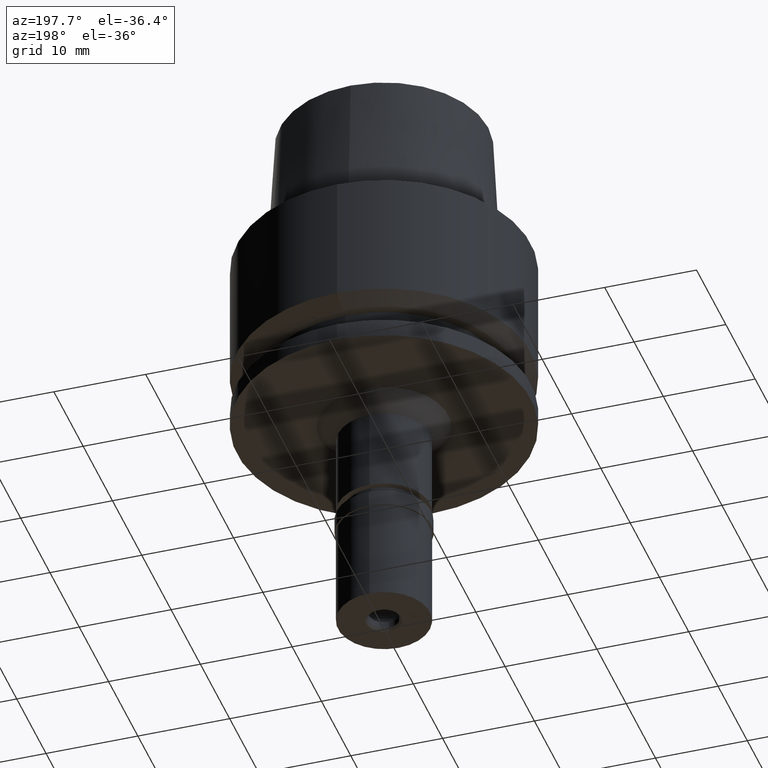
[diagram: clean part render]
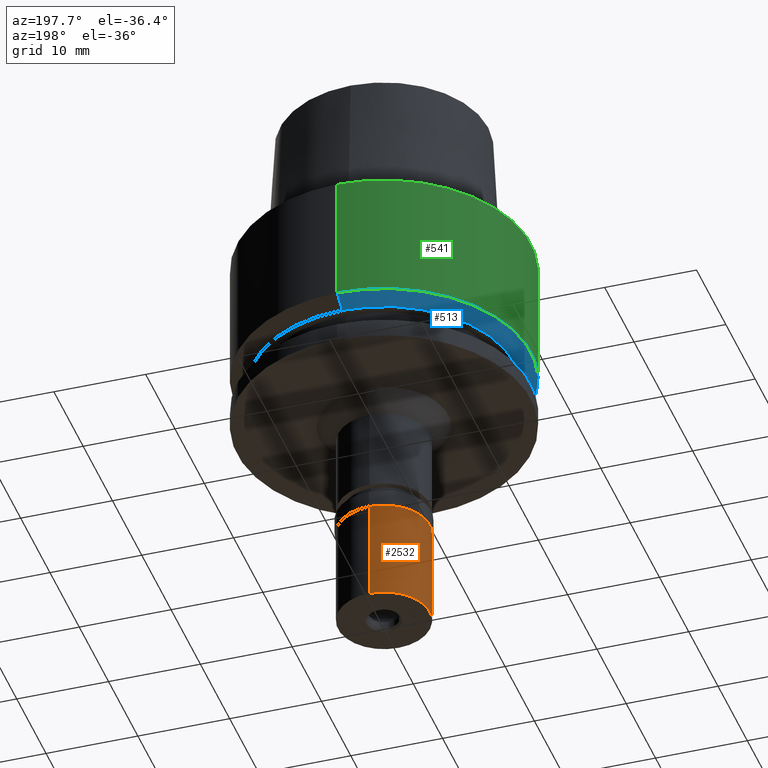
[diagram: same view with three faces highlighted in distinct colors, each labeled with its STEP entity id]
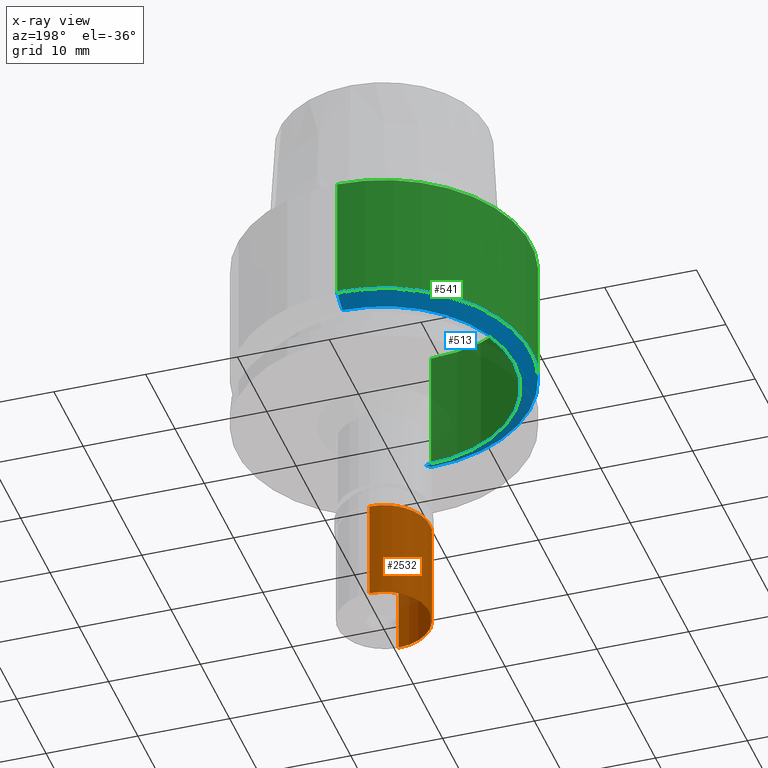
[diagram: x-ray of the same camera — body ghosted, the three highlighted faces saturated]
A machine part, auxiliary view with three faces highlighted in distinct colors.
The next image is the same camera in x-ray (body ghosted, the three faces saturated) — at least one of them is partly hidden behind the body in this view.
Their STEP definitions:

[orange] entity #2532 — the highlighted cylindrical surface (partial cylindrical patch) has radius 5 mm, axis along (0, 0, 1).
#1 = DIRECTION ( 'NONE',  ( 0.0000000000000000000, 0.0000000000000000000, -1.000000000000000000 ) ) ;
#69 = ORIENTED_EDGE ( 'NONE', *, *, #971, .T. ) ;
#91 = AXIS2_PLACEMENT_3D ( 'NONE', #2477, #1029, #2678 ) ;
#119 = FACE_OUTER_BOUND ( 'NONE', #1963, .T. ) ;
#392 = CARTESIAN_POINT ( 'NONE',  ( 0.0000000000000000000, -5.000000000000000000, -1.800000000000000044 ) ) ;
#414 = DIRECTION ( 'NONE',  ( 0.0000000000000000000, 0.0000000000000000000, -1.000000000000000000 ) ) ;
#480 = ORIENTED_EDGE ( 'NONE', *, *, #719, .T. ) ;
#504 = AXIS2_PLACEMENT_3D ( 'NONE', #1792, #705, #673 ) ;
#653 = VECTOR ( 'NONE', #1, 1000.000000000000000 ) ;
#673 = DIRECTION ( 'NONE',  ( 0.0000000000000000000, 1.000000000000000000, 0.0000000000000000000 ) ) ;
#681 = VERTEX_POINT ( 'NONE', #2067 ) ;
#683 = EDGE_CURVE ( 'NONE', #681, #1493, #1047, .T. ) ;
#692 = EDGE_CURVE ( 'NONE', #681, #2529, #1270, .T. ) ;
#705 = DIRECTION ( 'NONE',  ( 0.0000000000000000000, 0.0000000000000000000, 1.000000000000000000 ) ) ;
#719 = EDGE_CURVE ( 'NONE', #1493, #2041, #1879, .T. ) ;
#956 = CYLINDRICAL_SURFACE ( 'NONE', #504, 5.000000000000000000 ) ;
#971 = EDGE_CURVE ( 'NONE', #2041, #2529, #2619, .T. ) ;
#982 = ORIENTED_EDGE ( 'NONE', *, *, #683, .T. ) ;
#1029 = DIRECTION ( 'NONE',  ( 0.0000000000000000000, 0.0000000000000000000, -1.000000000000000000 ) ) ;
#1047 = CIRCLE ( 'NONE', #91, 5.000000000000000000 ) ;
#1270 = LINE ( 'NONE', #392, #2096 ) ;
#1493 = VERTEX_POINT ( 'NONE', #1814 ) ;
#1655 = CARTESIAN_POINT ( 'NONE',  ( 0.0000000000000000000, 5.000000000000000000, -1.800000000000000044 ) ) ;
#1663 = DIRECTION ( 'NONE',  ( 0.0000000000000000000, 0.0000000000000000000, 1.000000000000000000 ) ) ;
#1792 = CARTESIAN_POINT ( 'NONE',  ( 0.0000000000000000000, 0.0000000000000000000, -13.65000000000000036 ) ) ;
#1814 = CARTESIAN_POINT ( 'NONE',  ( 0.0000000000000000000, 5.000000000000000000, -1.800000000000000044 ) ) ;
#1877 = CARTESIAN_POINT ( 'NONE',  ( 0.0000000000000000000, 0.0000000000000000000, -13.00000000000000000 ) ) ;
#1879 = LINE ( 'NONE', #1655, #653 ) ;
#1963 = EDGE_LOOP ( 'NONE', ( #69, #1991, #982, #480 ) ) ;
#1991 = ORIENTED_EDGE ( 'NONE', *, *, #692, .F. ) ;
#2041 = VERTEX_POINT ( 'NONE', #2221 ) ;
#2067 = CARTESIAN_POINT ( 'NONE',  ( 0.0000000000000000000, -5.000000000000000000, -1.800000000000000044 ) ) ;
#2096 = VECTOR ( 'NONE', #414, 1000.000000000000000 ) ;
#2139 = AXIS2_PLACEMENT_3D ( 'NONE', #1877, #1663, #2654 ) ;
#2221 = CARTESIAN_POINT ( 'NONE',  ( 0.0000000000000000000, 5.000000000000000000, -13.00000000000000000 ) ) ;
#2477 = CARTESIAN_POINT ( 'NONE',  ( 0.0000000000000000000, 0.0000000000000000000, -1.800000000000000044 ) ) ;
#2529 = VERTEX_POINT ( 'NONE', #2589 ) ;
#2532 = ADVANCED_FACE ( 'NONE', ( #119 ), #956, .T. ) ;
#2589 = CARTESIAN_POINT ( 'NONE',  ( 0.0000000000000000000, -5.000000000000000000, -13.00000000000000000 ) ) ;
#2619 = CIRCLE ( 'NONE', #2139, 5.000000000000000000 ) ;
#2654 = DIRECTION ( 'NONE',  ( 0.0000000000000000000, 1.000000000000000000, 0.0000000000000000000 ) ) ;
#2678 = DIRECTION ( 'NONE',  ( 0.0000000000000000000, -1.000000000000000000, 0.0000000000000000000 ) ) ;

[blue] entity #513 — the highlighted conical surface has half-angle 60 deg.
#147 = DIRECTION ( 'NONE',  ( 0.0000000000000000000, 0.0000000000000000000, 1.000000000000000000 ) ) ;
#169 = FACE_OUTER_BOUND ( 'NONE', #2501, .T. ) ;
#243 = AXIS2_PLACEMENT_3D ( 'NONE', #775, #147, #1817 ) ;
#278 = LINE ( 'NONE', #1106, #2148 ) ;
#296 = AXIS2_PLACEMENT_3D ( 'NONE', #2652, #746, #1570 ) ;
#351 = EDGE_CURVE ( 'NONE', #2224, #2081, #1653, .T. ) ;
#360 = VECTOR ( 'NONE', #2159, 1000.000000000000000 ) ;
#361 = CARTESIAN_POINT ( 'NONE',  ( 0.0000000000000000000, 0.0000000000000000000, -14.48963702891999894 ) ) ;
#373 = CIRCLE ( 'NONE', #243, 14.23205080756999941 ) ;
#482 = CARTESIAN_POINT ( 'NONE',  ( 0.0000000000000000000, 14.23205080756999941, -15.00000000000000000 ) ) ;
#513 = ADVANCED_FACE ( 'NONE', ( #169 ), #909, .T. ) ;
#557 = DIRECTION ( 'NONE',  ( 0.0000000000000000000, 0.0000000000000000000, 1.000000000000000000 ) ) ;
#746 = DIRECTION ( 'NONE',  ( 0.0000000000000000000, 0.0000000000000000000, 1.000000000000000000 ) ) ;
#775 = CARTESIAN_POINT ( 'NONE',  ( 0.0000000000000000000, 0.0000000000000000000, -15.00000000000000000 ) ) ;
#909 = CONICAL_SURFACE ( 'NONE', #2565, 15.11602540378000015, 1.047197551196400456 ) ;
#923 = ORIENTED_EDGE ( 'NONE', *, *, #2647, .T. ) ;
#957 = CARTESIAN_POINT ( 'NONE',  ( 0.0000000000000000000, -16.00000000000000000, -13.97927405783999966 ) ) ;
#966 = CARTESIAN_POINT ( 'NONE',  ( 0.0000000000000000000, -14.23205080756999941, -15.00000000000000000 ) ) ;
#1106 = CARTESIAN_POINT ( 'NONE',  ( 0.0000000000000000000, -16.00000000000000000, -13.97927405783999966 ) ) ;
#1259 = CARTESIAN_POINT ( 'NONE',  ( 0.0000000000000000000, 16.00000000000000000, -13.97927405783999966 ) ) ;
#1331 = LINE ( 'NONE', #2609, #360 ) ;
#1358 = DIRECTION ( 'NONE',  ( 0.0000000000000000000, 0.8660254037847886499, -0.4999999999993937627 ) ) ;
#1450 = ORIENTED_EDGE ( 'NONE', *, *, #1920, .F. ) ;
#1476 = ORIENTED_EDGE ( 'NONE', *, *, #351, .F. ) ;
#1484 = ORIENTED_EDGE ( 'NONE', *, *, #1832, .T. ) ;
#1570 = DIRECTION ( 'NONE',  ( 0.0000000000000000000, 1.000000000000000000, 0.0000000000000000000 ) ) ;
#1653 = CIRCLE ( 'NONE', #296, 16.00000000000000000 ) ;
#1817 = DIRECTION ( 'NONE',  ( 0.0000000000000000000, 1.000000000000000000, 0.0000000000000000000 ) ) ;
#1832 = EDGE_CURVE ( 'NONE', #2224, #2537, #1331, .T. ) ;
#1920 = EDGE_CURVE ( 'NONE', #2081, #2627, #278, .T. ) ;
#2081 = VERTEX_POINT ( 'NONE', #957 ) ;
#2148 = VECTOR ( 'NONE', #1358, 1000.000000000000000 ) ;
#2159 = DIRECTION ( 'NONE',  ( 0.0000000000000000000, -0.8660254037847886499, -0.4999999999993937627 ) ) ;
#2224 = VERTEX_POINT ( 'NONE', #1259 ) ;
#2392 = DIRECTION ( 'NONE',  ( 0.0000000000000000000, 1.000000000000000000, 0.0000000000000000000 ) ) ;
#2501 = EDGE_LOOP ( 'NONE', ( #923, #1450, #1476, #1484 ) ) ;
#2537 = VERTEX_POINT ( 'NONE', #482 ) ;
#2565 = AXIS2_PLACEMENT_3D ( 'NONE', #361, #557, #2392 ) ;
#2609 = CARTESIAN_POINT ( 'NONE',  ( 0.0000000000000000000, 16.00000000000000000, -13.97927405783999966 ) ) ;
#2627 = VERTEX_POINT ( 'NONE', #966 ) ;
#2647 = EDGE_CURVE ( 'NONE', #2537, #2627, #373, .T. ) ;
#2652 = CARTESIAN_POINT ( 'NONE',  ( 0.0000000000000000000, 0.0000000000000000000, -13.97927405783999966 ) ) ;

[green] entity #541 — the highlighted cylindrical surface (partial cylindrical patch) has radius 16 mm, axis along (0, 0, 1).
#32 = EDGE_CURVE ( 'NONE', #336, #2081, #2254, .T. ) ;
#55 = ORIENTED_EDGE ( 'NONE', *, *, #351, .T. ) ;
#131 = CARTESIAN_POINT ( 'NONE',  ( 0.0000000000000000000, -16.00000000000000000, -2.842170943039999687E-14 ) ) ;
#184 = DIRECTION ( 'NONE',  ( 0.0000000000000000000, 1.000000000000000000, 0.0000000000000000000 ) ) ;
#296 = AXIS2_PLACEMENT_3D ( 'NONE', #2652, #746, #1570 ) ;
#336 = VERTEX_POINT ( 'NONE', #131 ) ;
#351 = EDGE_CURVE ( 'NONE', #2224, #2081, #1653, .T. ) ;
#470 = AXIS2_PLACEMENT_3D ( 'NONE', #2051, #1443, #184 ) ;
#473 = EDGE_LOOP ( 'NONE', ( #55, #1122, #2073, #1360 ) ) ;
#541 = ADVANCED_FACE ( 'NONE', ( #2473 ), #1225, .T. ) ;
#746 = DIRECTION ( 'NONE',  ( 0.0000000000000000000, 0.0000000000000000000, 1.000000000000000000 ) ) ;
#957 = CARTESIAN_POINT ( 'NONE',  ( 0.0000000000000000000, -16.00000000000000000, -13.97927405783999966 ) ) ;
#1119 = EDGE_CURVE ( 'NONE', #1262, #2224, #1719, .T. ) ;
#1122 = ORIENTED_EDGE ( 'NONE', *, *, #32, .F. ) ;
#1125 = DIRECTION ( 'NONE',  ( 0.0000000000000000000, -1.000000000000000000, 0.0000000000000000000 ) ) ;
#1149 = AXIS2_PLACEMENT_3D ( 'NONE', #1372, #2358, #1125 ) ;
#1194 = CIRCLE ( 'NONE', #1149, 16.00000000000000000 ) ;
#1225 = CYLINDRICAL_SURFACE ( 'NONE', #470, 16.00000000000000000 ) ;
#1259 = CARTESIAN_POINT ( 'NONE',  ( 0.0000000000000000000, 16.00000000000000000, -13.97927405783999966 ) ) ;
#1262 = VERTEX_POINT ( 'NONE', #1581 ) ;
#1265 = VECTOR ( 'NONE', #1416, 1000.000000000000000 ) ;
#1360 = ORIENTED_EDGE ( 'NONE', *, *, #1119, .T. ) ;
#1372 = CARTESIAN_POINT ( 'NONE',  ( 0.0000000000000000000, 0.0000000000000000000, -2.842170943039999687E-14 ) ) ;
#1402 = CARTESIAN_POINT ( 'NONE',  ( 0.0000000000000000000, -16.00000000000000000, -1.894780628694000185E-14 ) ) ;
#1416 = DIRECTION ( 'NONE',  ( 0.0000000000000000000, 6.772870976582999535E-14, -1.000000000000000000 ) ) ;
#1443 = DIRECTION ( 'NONE',  ( 0.0000000000000000000, 0.0000000000000000000, 1.000000000000000000 ) ) ;
#1449 = VECTOR ( 'NONE', #2555, 1000.000000000000000 ) ;
#1570 = DIRECTION ( 'NONE',  ( 0.0000000000000000000, 1.000000000000000000, 0.0000000000000000000 ) ) ;
#1581 = CARTESIAN_POINT ( 'NONE',  ( 0.0000000000000000000, 16.00000000000000000, -2.842170943039999687E-14 ) ) ;
#1653 = CIRCLE ( 'NONE', #296, 16.00000000000000000 ) ;
#1719 = LINE ( 'NONE', #2515, #1449 ) ;
#1862 = EDGE_CURVE ( 'NONE', #336, #1262, #1194, .T. ) ;
#2051 = CARTESIAN_POINT ( 'NONE',  ( 0.0000000000000000000, 0.0000000000000000000, -44.16500000000000625 ) ) ;
#2073 = ORIENTED_EDGE ( 'NONE', *, *, #1862, .T. ) ;
#2081 = VERTEX_POINT ( 'NONE', #957 ) ;
#2224 = VERTEX_POINT ( 'NONE', #1259 ) ;
#2254 = LINE ( 'NONE', #1402, #1265 ) ;
#2358 = DIRECTION ( 'NONE',  ( 0.0000000000000000000, 0.0000000000000000000, -1.000000000000000000 ) ) ;
#2473 = FACE_OUTER_BOUND ( 'NONE', #473, .T. ) ;
#2515 = CARTESIAN_POINT ( 'NONE',  ( 0.0000000000000000000, 16.00000000000000000, -1.894780628694000185E-14 ) ) ;
#2555 = DIRECTION ( 'NONE',  ( 0.0000000000000000000, -6.772870976582999535E-14, -1.000000000000000000 ) ) ;
#2652 = CARTESIAN_POINT ( 'NONE',  ( 0.0000000000000000000, 0.0000000000000000000, -13.97927405783999966 ) ) ;